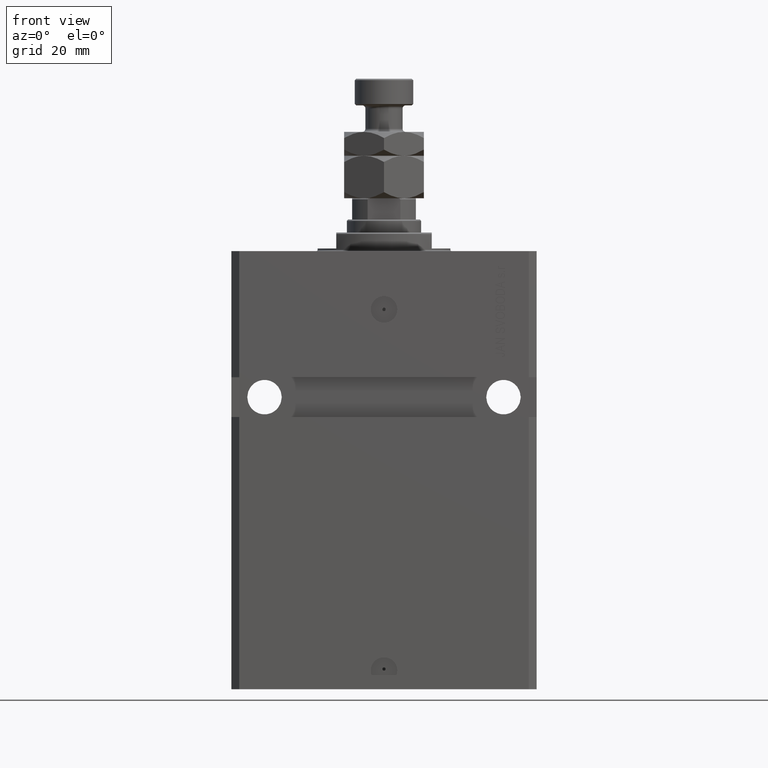
[diagram: clean part render]
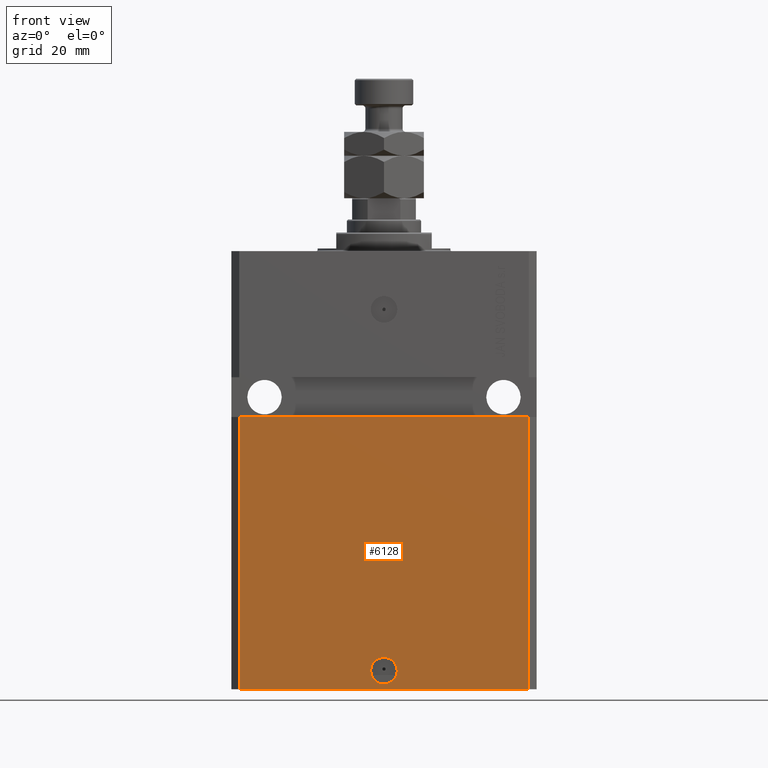
[diagram: same view with one face highlighted and labeled with its STEP entity id]
A machine part, front view. The second image highlights one B-rep face of the part: STEP entity #6128.
In plain terms, the highlighted planar face has unit normal (0, -1, 0).
Its self-contained STEP definition (entity closure, byte-faithful):
#257 = VECTOR ( 'NONE', #43754, 1000.000000000000000 ) ;
#961 = VECTOR ( 'NONE', #44349, 1000.000000000000000 ) ;
#1180 = EDGE_CURVE ( 'NONE', #47324, #25783, #1389, .T. ) ;
#1389 = LINE ( 'NONE', #24510, #961 ) ;
#3891 = LINE ( 'NONE', #47379, #257 ) ;
#4035 = ORIENTED_EDGE ( 'NONE', *, *, #36705, .F. ) ;
#6128 = ADVANCED_FACE ( 'NONE', ( #45393, #25551 ), #41784, .T. ) ;
#7058 = VECTOR ( 'NONE', #8056, 1000.000000000000000 ) ;
#7214 = ORIENTED_EDGE ( 'NONE', *, *, #33140, .F. ) ;
#7760 = ORIENTED_EDGE ( 'NONE', *, *, #19622, .T. ) ;
#8056 = DIRECTION ( 'NONE',  ( 0.000000000000000000, 0.000000000000000000, 1.000000000000000000 ) ) ;
#8234 = EDGE_CURVE ( 'NONE', #44801, #25783, #3891, .T. ) ;
#11949 = VERTEX_POINT ( 'NONE', #44853 ) ;
#11982 = CIRCLE ( 'NONE', #31701, 5.000000000000006217 ) ;
#12192 = DIRECTION ( 'NONE',  ( 1.176083712526788232E-16, -1.000000000000000000, 0.000000000000000000 ) ) ;
#12680 = LINE ( 'NONE', #27595, #7058 ) ;
#13524 = DIRECTION ( 'NONE',  ( 1.176083712526788232E-16, -1.000000000000000000, 0.000000000000000000 ) ) ;
#14012 = CARTESIAN_POINT ( 'NONE',  ( -54.50000000000000711, -45.00000000000000000, -62.50000000000000000 ) ) ;
#16984 = ORIENTED_EDGE ( 'NONE', *, *, #1180, .F. ) ;
#17164 = LINE ( 'NONE', #41091, #41991 ) ;
#17761 = AXIS2_PLACEMENT_3D ( 'NONE', #35339, #12192, #39989 ) ;
#18091 = DIRECTION ( 'NONE',  ( 1.273191542001326317E-16, -1.000000000000000000, 0.000000000000000000 ) ) ;
#18810 = ORIENTED_EDGE ( 'NONE', *, *, #33387, .F. ) ;
#19622 = EDGE_CURVE ( 'NONE', #20074, #44801, #17164, .T. ) ;
#20040 = EDGE_LOOP ( 'NONE', ( #16984, #4035, #7760, #50413 ) ) ;
#20074 = VERTEX_POINT ( 'NONE', #39689 ) ;
#23327 = EDGE_LOOP ( 'NONE', ( #18810, #7214 ) ) ;
#24510 = CARTESIAN_POINT ( 'NONE',  ( -57.50000000000002132, -45.00000000000000000, -62.50000000000000000 ) ) ;
#25551 = FACE_OUTER_BOUND ( 'NONE', #20040, .T. ) ;
#25783 = VERTEX_POINT ( 'NONE', #30209 ) ;
#27595 = CARTESIAN_POINT ( 'NONE',  ( -54.50000000000000711, -45.00000000000000000, -165.0000000000000000 ) ) ;
#29237 = DIRECTION ( 'NONE',  ( 1.000000000000000000, 1.273191542001326317E-16, 0.000000000000000000 ) ) ;
#30209 = CARTESIAN_POINT ( 'NONE',  ( 54.50000000000000711, -44.99999999999998579, -62.49999999999999289 ) ) ;
#31701 = AXIS2_PLACEMENT_3D ( 'NONE', #44667, #13524, #44401 ) ;
#33140 = EDGE_CURVE ( 'NONE', #11949, #46953, #11982, .T. ) ;
#33387 = EDGE_CURVE ( 'NONE', #46953, #11949, #44060, .T. ) ;
#35339 = CARTESIAN_POINT ( 'NONE',  ( 5.729361939005967538E-15, -44.99999999999999289, -158.0000000000000000 ) ) ;
#36705 = EDGE_CURVE ( 'NONE', #20074, #47324, #12680, .T. ) ;
#37428 = DIRECTION ( 'NONE',  ( 1.000000000000000000, 1.273191542001326317E-16, 0.000000000000000000 ) ) ;
#39650 = CARTESIAN_POINT ( 'NONE',  ( 54.50000000000000711, -44.99999999999998579, -165.0000000000000000 ) ) ;
#39689 = CARTESIAN_POINT ( 'NONE',  ( -54.50000000000000711, -45.00000000000000000, -165.0000000000000000 ) ) ;
#39989 = DIRECTION ( 'NONE',  ( 1.000000000000000000, 0.000000000000000000, 0.000000000000000000 ) ) ;
#41091 = CARTESIAN_POINT ( 'NONE',  ( -54.50000000000000711, -45.00000000000000000, -165.0000000000000000 ) ) ;
#41296 = CARTESIAN_POINT ( 'NONE',  ( -54.50000000000000711, -45.00000000000000000, -165.0000000000000000 ) ) ;
#41784 = PLANE ( 'NONE',  #46204 ) ;
#41991 = VECTOR ( 'NONE', #29237, 1000.000000000000000 ) ;
#43754 = DIRECTION ( 'NONE',  ( 0.000000000000000000, 0.000000000000000000, 1.000000000000000000 ) ) ;
#44060 = CIRCLE ( 'NONE', #17761, 5.000000000000006217 ) ;
#44349 = DIRECTION ( 'NONE',  ( 1.000000000000000000, 1.206764157201257045E-16, 6.033820786006285224E-17 ) ) ;
#44401 = DIRECTION ( 'NONE',  ( 1.000000000000000000, 0.000000000000000000, 0.000000000000000000 ) ) ;
#44667 = CARTESIAN_POINT ( 'NONE',  ( 5.729361939005967538E-15, -44.99999999999999289, -158.0000000000000000 ) ) ;
#44801 = VERTEX_POINT ( 'NONE', #39650 ) ;
#44853 = CARTESIAN_POINT ( 'NONE',  ( -5.000000000000000000, -44.99999999999999289, -158.0000000000000000 ) ) ;
#45393 = FACE_BOUND ( 'NONE', #23327, .T. ) ;
#45470 = CARTESIAN_POINT ( 'NONE',  ( 5.000000000000012434, -44.99999999999999289, -158.0000000000000000 ) ) ;
#46204 = AXIS2_PLACEMENT_3D ( 'NONE', #41296, #18091, #37428 ) ;
#46953 = VERTEX_POINT ( 'NONE', #45470 ) ;
#47324 = VERTEX_POINT ( 'NONE', #14012 ) ;
#47379 = CARTESIAN_POINT ( 'NONE',  ( 54.50000000000000711, -44.99999999999998579, -165.0000000000000000 ) ) ;
#50413 = ORIENTED_EDGE ( 'NONE', *, *, #8234, .T. ) ;